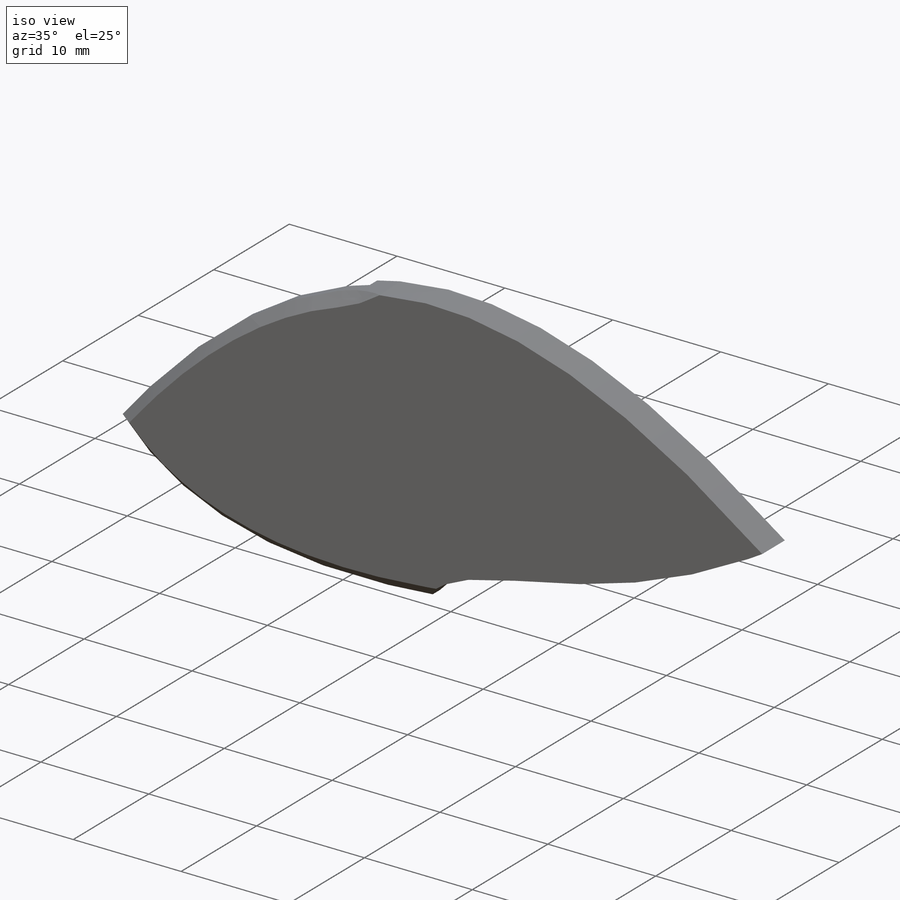
[diagram: iso view]
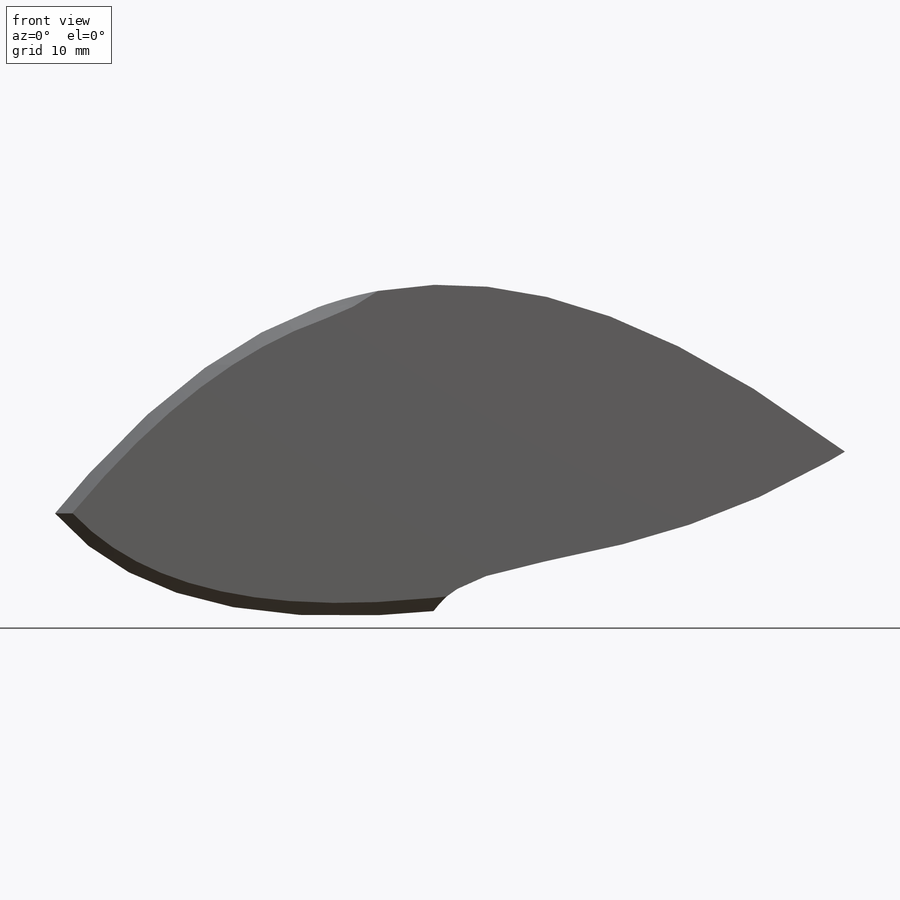
[diagram: front view]
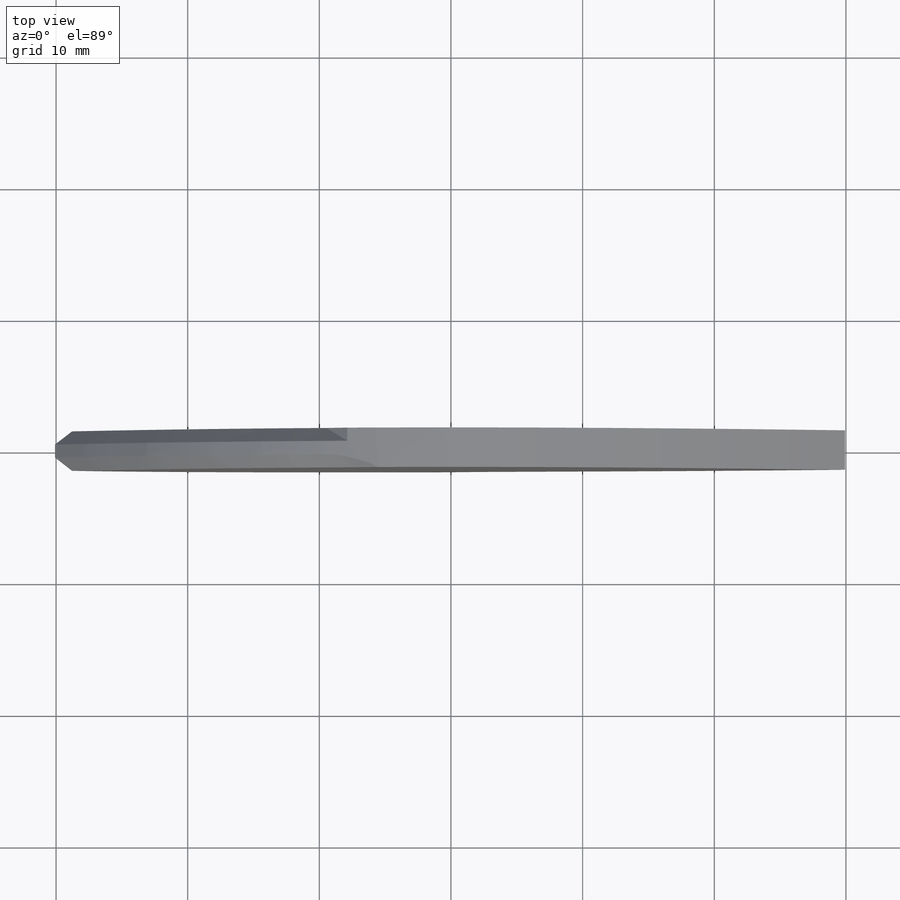
[diagram: top view]
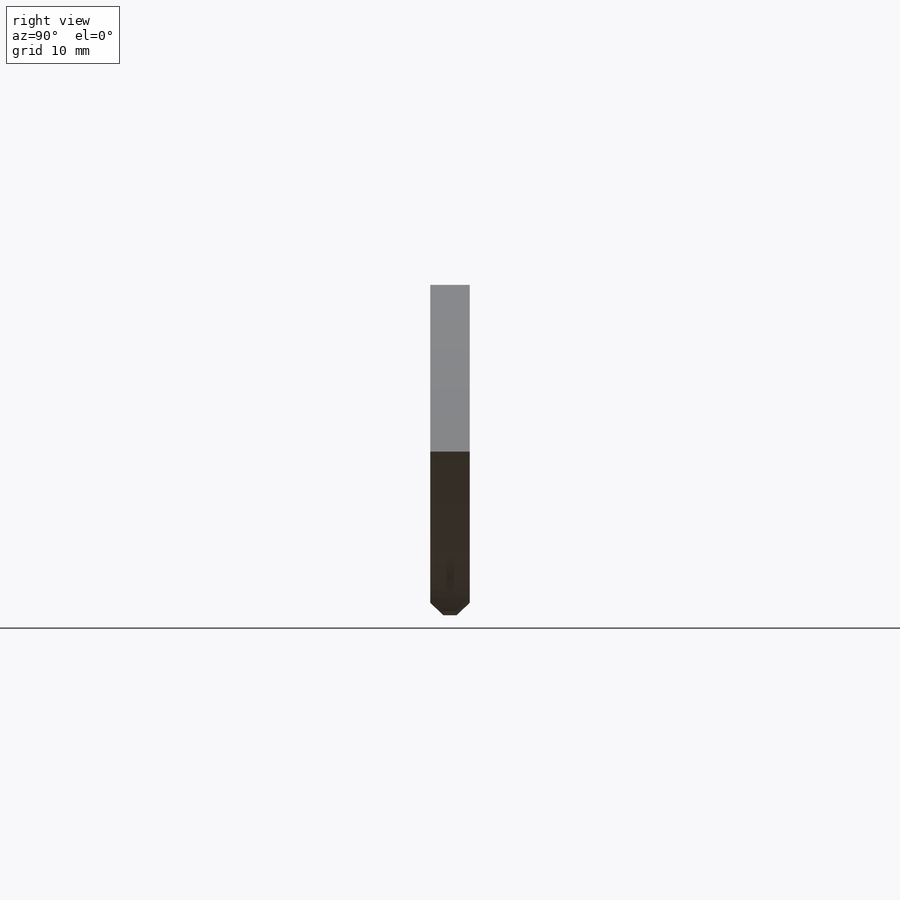
[diagram: right view]
SOLIDWORKS PART (.sldprt)
format: sldprt  version: not decoded by parser v0  size: 324,608 bytes
history: native  units: mm
features: sketch x6, chamfer x5, plane x4, material x1, extrude x1, boolean_combine x1, sweep x1 (+8 scaffold rows collapsed)
feature tree (27):
  scaffold x8  (default folders/planes/origin — collapsed)
  material  "Material <nicht festgelegt>"
  plane  "Vorne"
  plane  "Oben"
  plane  "Rechts"
  sketch  "Skizze1"  dims[D1=60.0mm]
  extrude  "Aufsatz-Linear austragen1"  Depth=3mm
  sketch  "Skizze2"  dims[D1=~31.253859mm]
  chamfer  "Fase2"  Distance=1mm Angle=45deg
  chamfer  "Fase3"  Distance=1mm Angle=45deg
  boolean_combine  "Kombinieren1"
  sketch  "Skizze3"  dims[D1=0.0mm]
  sketch  "Skizze4"
  plane  "Ebene1"  Offset=20mm
  sketch  "Skizze5"
  sketch  "3D-Skizze1"
  sweep  "Schnitt-Austragung1"
  chamfer  "Fase4"  Distance=1mm Angle=45deg
  chamfer  "Fase6"  Distance=3.65mm Angle=45deg
  chamfer  "Fase7"  Distance=3.65mm Angle=45deg
decode coverage: 9 of 14 modeling features carry decoded parameters
note: ~ marks probable driven/reference dimensions
note: suppression state not decoded; provenance and decode notes live in map.json
